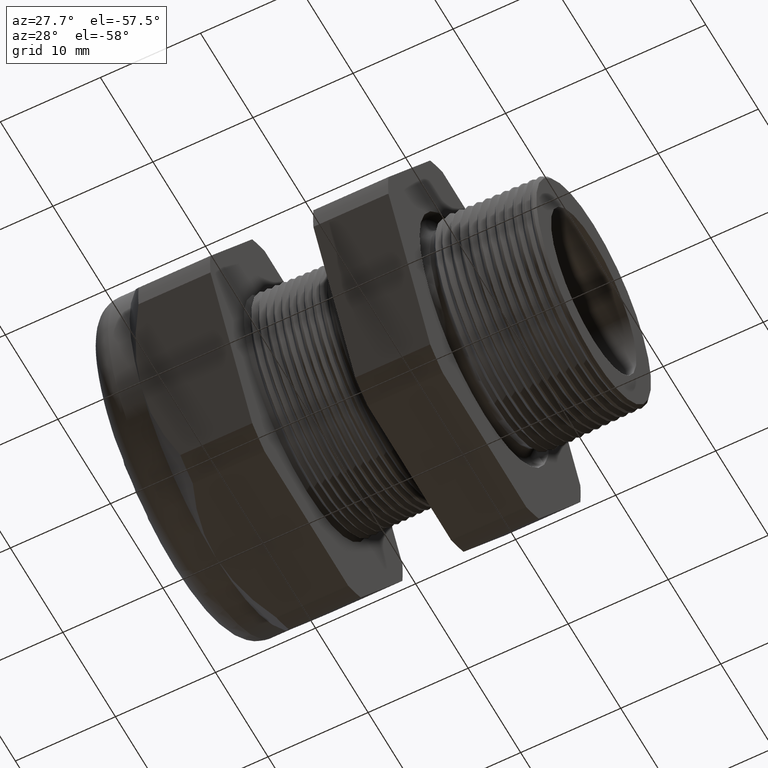
[diagram: clean part render]
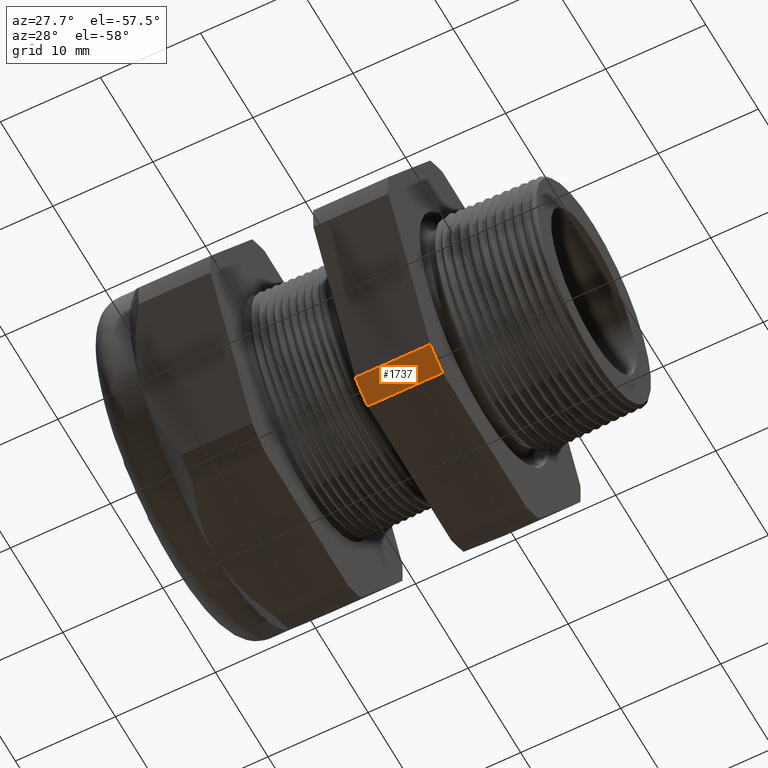
[diagram: same view with one face highlighted and labeled with its STEP entity id]
A machine part, auxiliary view. The second image highlights one B-rep face of the part: STEP entity #1737.
In plain terms, the highlighted cylindrical surface (partial cylindrical patch) has radius 18.3261 mm, axis along (-1, 0, 0).
Its self-contained STEP definition (entity closure, byte-faithful):
#600 = VERTEX_POINT ( 'NONE', #3476 ) ;
#601 = EDGE_CURVE ( 'NONE', #607, #600, #3540, .T. ) ;
#607 = VERTEX_POINT ( 'NONE', #3527 ) ;
#692 = VERTEX_POINT ( 'NONE', #3676 ) ;
#1733 = EDGE_LOOP ( 'NONE', ( #1757, #1761, #1762, #1754 ) ) ;
#1737 = ADVANCED_FACE ( 'NONE', ( #3726 ), #3724, .T. ) ;
#1738 = EDGE_CURVE ( 'NONE', #607, #692, #3725, .T. ) ;
#1754 = ORIENTED_EDGE ( 'NONE', *, *, #601, .F. ) ;
#1757 = ORIENTED_EDGE ( 'NONE', *, *, #1738, .T. ) ;
#1758 = EDGE_CURVE ( 'NONE', #600, #4921, #3756, .T. ) ;
#1761 = ORIENTED_EDGE ( 'NONE', *, *, #4969, .F. ) ;
#1762 = ORIENTED_EDGE ( 'NONE', *, *, #1758, .F. ) ;
#3476 = CARTESIAN_POINT ( 'NONE',  ( -0.3100000000000000000, -0.3131489262315934100, -0.6500000000000001300 ) ) ;
#3527 = CARTESIAN_POINT ( 'NONE',  ( -0.3100000000000000000, -0.4063420493440881300, -0.5961949252843793400 ) ) ;
#3536 = DIRECTION ( 'NONE',  ( 0.0000000000000000000, 0.0000000000000000000, -1.000000000000000000 ) ) ;
#3537 = DIRECTION ( 'NONE',  ( 1.000000000000000000, 0.0000000000000000000, 0.0000000000000000000 ) ) ;
#3538 = CARTESIAN_POINT ( 'NONE',  ( -0.3100000000000000000, 0.0000000000000000000, 0.0000000000000000000 ) ) ;
#3539 = AXIS2_PLACEMENT_3D ( 'NONE', #3538, #3537, #3536 ) ;
#3540 = CIRCLE ( 'NONE', #3539, 0.7215000000000000300 ) ;
#3676 = CARTESIAN_POINT ( 'NONE',  ( -0.6052755905511810800, -0.4063420493440881300, -0.5961949252843793400 ) ) ;
#3717 = DIRECTION ( 'NONE',  ( -1.000000000000000000, 0.0000000000000000000, 0.0000000000000000000 ) ) ;
#3718 = VECTOR ( 'NONE', #3717, 39.37007874015748100 ) ;
#3719 = CARTESIAN_POINT ( 'NONE',  ( 0.1200000000000000900, -0.4063420493440881300, -0.5961949252843793400 ) ) ;
#3720 = DIRECTION ( 'NONE',  ( 0.0000000000000000000, 0.0000000000000000000, 1.000000000000000000 ) ) ;
#3721 = DIRECTION ( 'NONE',  ( -1.000000000000000000, 0.0000000000000000000, 0.0000000000000000000 ) ) ;
#3722 = CARTESIAN_POINT ( 'NONE',  ( 0.1200000000000000900, 0.0000000000000000000, 0.0000000000000000000 ) ) ;
#3723 = AXIS2_PLACEMENT_3D ( 'NONE', #3722, #3721, #3720 ) ;
#3724 = CYLINDRICAL_SURFACE ( 'NONE', #3723, 0.7215000000000000300 ) ;
#3725 = LINE ( 'NONE', #3719, #3718 ) ;
#3726 = FACE_OUTER_BOUND ( 'NONE', #1733, .T. ) ;
#3753 = DIRECTION ( 'NONE',  ( -1.000000000000000000, 0.0000000000000000000, 0.0000000000000000000 ) ) ;
#3754 = VECTOR ( 'NONE', #3753, 39.37007874015748100 ) ;
#3755 = CARTESIAN_POINT ( 'NONE',  ( 0.1200000000000000900, -0.3131489262315934100, -0.6500000000000001300 ) ) ;
#3756 = LINE ( 'NONE', #3755, #3754 ) ;
#4704 = CARTESIAN_POINT ( 'NONE',  ( -0.6052755905511810800, -0.3131489262315934100, -0.6500000000000001300 ) ) ;
#4759 = CIRCLE ( 'NONE', #4819, 0.7215000000000000300 ) ;
#4816 = DIRECTION ( 'NONE',  ( 0.0000000000000000000, 0.0000000000000000000, 1.000000000000000000 ) ) ;
#4817 = DIRECTION ( 'NONE',  ( -1.000000000000000000, 0.0000000000000000000, 0.0000000000000000000 ) ) ;
#4818 = CARTESIAN_POINT ( 'NONE',  ( -0.6052755905511810800, 0.0000000000000000000, 0.0000000000000000000 ) ) ;
#4819 = AXIS2_PLACEMENT_3D ( 'NONE', #4818, #4817, #4816 ) ;
#4921 = VERTEX_POINT ( 'NONE', #4704 ) ;
#4969 = EDGE_CURVE ( 'NONE', #4921, #692, #4759, .T. ) ;